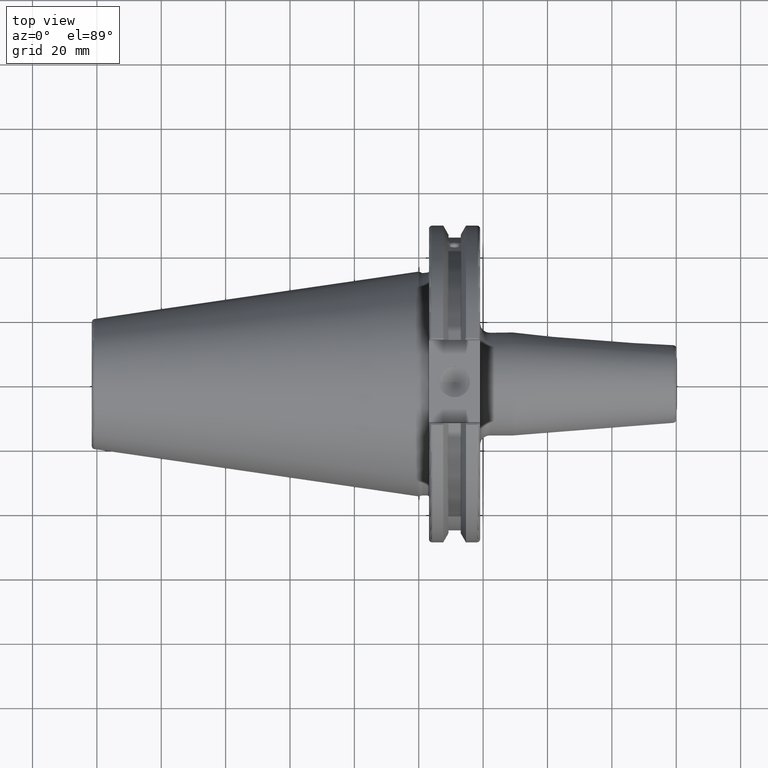
[diagram: clean part render]
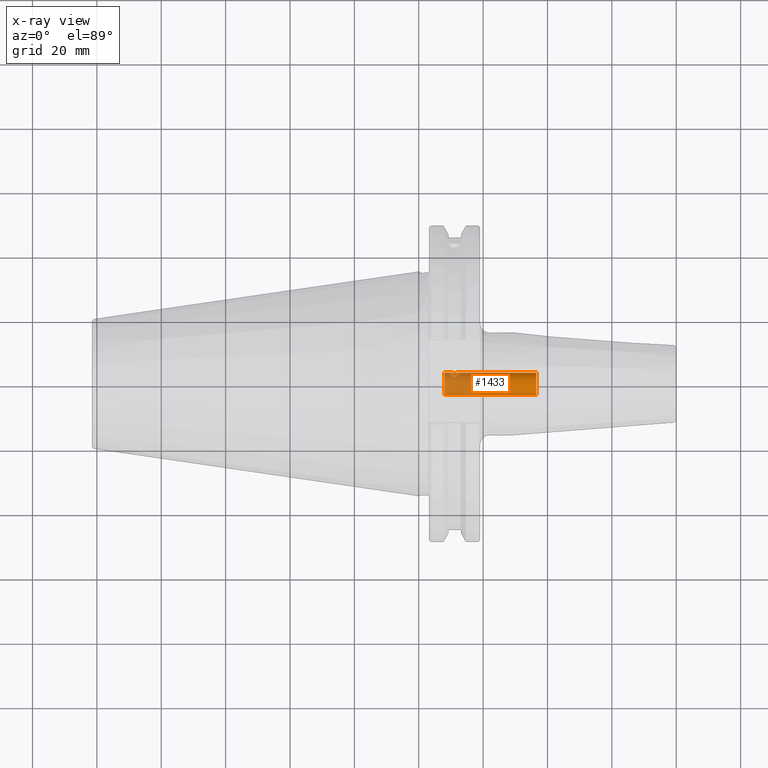
[diagram: x-ray — body ghosted, one internal face saturated and labeled with its STEP entity id]
A machine part, top view, then the same camera in x-ray: the body is ghosted and one INTERNAL B-rep face — a face not visible from any outside direction — is saturated and labeled: STEP entity #1433.
In plain terms, the highlighted cylindrical surface (bore or boss wall) has radius 3.4585 mm, axis along (1, 0, 0).
Its self-contained STEP definition (entity closure, byte-faithful):
#33=B_SPLINE_CURVE_WITH_KNOTS('',3,(#2175,#2176,#2177,#2178,#2179,#2180,
#2181,#2182,#2183,#2184),.UNSPECIFIED.,.F.,.F.,(4,2,2,2,4),(0.,0.0622016464187289,
0.124403292837458,0.186478402589838,0.248553512342218),.UNSPECIFIED.);
#34=B_SPLINE_CURVE_WITH_KNOTS('',3,(#2185,#2186,#2187,#2188,#2189,#2190,
#2191,#2192,#2193,#2194,#2195,#2196,#2197,#2198,#2199,#2200,#2201,#2202,
#2203,#2204,#2205,#2206,#2207,#2208,#2209,#2210),.UNSPECIFIED.,.F.,.F.,
(4,2,2,2,2,2,2,2,2,2,2,2,4),(0.248553512342218,0.310628622094598,0.372703731846978,
0.434905378265707,0.497107024684435,0.559308671103164,0.621510317521892,
0.683585427274271,0.74566053702665,0.807735646779029,0.869810756531408,
0.932012402950136,0.994214049368864),.UNSPECIFIED.);
#35=B_SPLINE_CURVE_WITH_KNOTS('',3,(#2213,#2214,#2215,#2216,#2217,#2218,
#2219,#2220,#2221,#2222),.UNSPECIFIED.,.F.,.F.,(4,2,2,2,4),(0.,0.06220164641873,
0.12440329283746,0.186478402589839,0.248553512342217),.UNSPECIFIED.);
#36=B_SPLINE_CURVE_WITH_KNOTS('',3,(#2223,#2224,#2225,#2226,#2227,#2228,
#2229,#2230,#2231,#2232,#2233,#2234,#2235,#2236,#2237,#2238,#2239,#2240,
#2241,#2242,#2243,#2244,#2245,#2246,#2247,#2248),.UNSPECIFIED.,.F.,.F.,
(4,2,2,2,2,2,2,2,2,2,2,2,4),(0.248553512342217,0.310628622094596,0.372703731846975,
0.434905378265705,0.497107024684435,0.559308671103164,0.621510317521893,
0.683585427274272,0.745660537026651,0.80773564677903,0.86981075653141,0.932012402950139,
0.994214049368868),.UNSPECIFIED.);
#96=LINE('',#2169,#186);
#186=VECTOR('',#1759,3.4585);
#265=CYLINDRICAL_SURFACE('',#1556,3.4585);
#291=FACE_BOUND('',#441,.T.);
#292=FACE_BOUND('',#442,.T.);
#354=FACE_OUTER_BOUND('',#440,.T.);
#440=EDGE_LOOP('',(#1021,#1022,#1023,#1024,#1025));
#441=EDGE_LOOP('',(#1026,#1027));
#442=EDGE_LOOP('',(#1028,#1029));
#550=CIRCLE('',#1557,3.4585);
#551=CIRCLE('',#1558,3.4585);
#552=CIRCLE('',#1559,3.4585);
#631=VERTEX_POINT('',#2166);
#632=VERTEX_POINT('',#2168);
#633=VERTEX_POINT('',#2170);
#634=VERTEX_POINT('',#2173);
#635=VERTEX_POINT('',#2174);
#636=VERTEX_POINT('',#2211);
#637=VERTEX_POINT('',#2212);
#785=EDGE_CURVE('',#631,#631,#550,.T.);
#786=EDGE_CURVE('',#631,#632,#96,.T.);
#787=EDGE_CURVE('',#633,#632,#551,.T.);
#788=EDGE_CURVE('',#632,#633,#552,.T.);
#789=EDGE_CURVE('',#634,#635,#33,.T.);
#790=EDGE_CURVE('',#635,#634,#34,.T.);
#791=EDGE_CURVE('',#636,#637,#35,.T.);
#792=EDGE_CURVE('',#637,#636,#36,.T.);
#1021=ORIENTED_EDGE('',*,*,#785,.F.);
#1022=ORIENTED_EDGE('',*,*,#786,.T.);
#1023=ORIENTED_EDGE('',*,*,#787,.F.);
#1024=ORIENTED_EDGE('',*,*,#788,.F.);
#1025=ORIENTED_EDGE('',*,*,#786,.F.);
#1026=ORIENTED_EDGE('',*,*,#789,.F.);
#1027=ORIENTED_EDGE('',*,*,#790,.F.);
#1028=ORIENTED_EDGE('',*,*,#791,.F.);
#1029=ORIENTED_EDGE('',*,*,#792,.F.);
#1433=ADVANCED_FACE('',(#354,#291,#292),#265,.F.);
#1556=AXIS2_PLACEMENT_3D('',#2165,#1755,#1756);
#1557=AXIS2_PLACEMENT_3D('',#2167,#1757,#1758);
#1558=AXIS2_PLACEMENT_3D('',#2171,#1760,#1761);
#1559=AXIS2_PLACEMENT_3D('',#2172,#1762,#1763);
#1755=DIRECTION('center_axis',(1.,0.,0.));
#1756=DIRECTION('ref_axis',(0.,0.,-1.));
#1757=DIRECTION('center_axis',(-1.,0.,0.));
#1758=DIRECTION('ref_axis',(0.,0.,-1.));
#1759=DIRECTION('',(-1.,0.,0.));
#1760=DIRECTION('center_axis',(1.,0.,0.));
#1761=DIRECTION('ref_axis',(0.,0.,-1.));
#1762=DIRECTION('center_axis',(1.,0.,0.));
#1763=DIRECTION('ref_axis',(0.,0.,-1.));
#2165=CARTESIAN_POINT('Origin',(-147.228560080512,0.,0.));
#2166=CARTESIAN_POINT('',(36.5,4.23544095485112E-16,3.4585));
#2167=CARTESIAN_POINT('Origin',(36.5,0.,0.));
#2168=CARTESIAN_POINT('',(7.92267787942045,-4.23544095485112E-16,3.4585));
#2169=CARTESIAN_POINT('',(-147.228560080512,-4.23544095485112E-16,3.4585));
#2170=CARTESIAN_POINT('',(7.92267787942045,-4.23544095485112E-16,-3.4585));
#2171=CARTESIAN_POINT('Origin',(7.92267787942045,0.,0.));
#2172=CARTESIAN_POINT('Origin',(7.92267787942045,0.,0.));
#2173=CARTESIAN_POINT('',(11.1341,-2.31643185183489,-2.56814441295749));
#2174=CARTESIAN_POINT('',(9.5131,-3.24992692898806,-1.18287666569183));
#2175=CARTESIAN_POINT('Ctrl Pts',(11.1341,-2.31643185183489,-2.56814441295749));
#2176=CARTESIAN_POINT('Ctrl Pts',(10.9267611786043,-2.31643185183489,-2.56814441295749));
#2177=CARTESIAN_POINT('Ctrl Pts',(10.7083501747749,-2.35277560996084,-2.53656745812173));
#2178=CARTESIAN_POINT('Ctrl Pts',(10.3102334163738,-2.48461268195478,-2.40757690802051));
#2179=CARTESIAN_POINT('Ctrl Pts',(10.1301669593844,-2.57858764302937,-2.30972981082117));
#2180=CARTESIAN_POINT('Ctrl Pts',(9.84588231023107,-2.7696581626428,-2.07674438792115));
#2181=CARTESIAN_POINT('Ctrl Pts',(9.72157985129798,-2.8802198494188,-1.92525445745764));
#2182=CARTESIAN_POINT('Ctrl Pts',(9.55510687438423,-3.08531693748387,-1.57578250951528));
#2183=CARTESIAN_POINT('Ctrl Pts',(9.5131,-3.17915713587318,-1.37731507425445));
#2184=CARTESIAN_POINT('Ctrl Pts',(9.5131,-3.24992692898806,-1.18287666569183));
#2185=CARTESIAN_POINT('Ctrl Pts',(9.5131,-3.24992692898806,-1.18287666569183));
#2186=CARTESIAN_POINT('Ctrl Pts',(9.5131,-3.32069672210295,-0.988438257129203));
#2187=CARTESIAN_POINT('Ctrl Pts',(9.55510687438423,-3.37638336789757,-0.776084064392399));
#2188=CARTESIAN_POINT('Ctrl Pts',(9.72157985129798,-3.4439061213558,-0.376539153654165));
#2189=CARTESIAN_POINT('Ctrl Pts',(9.84588231023107,-3.45658680587341,-0.189423451868465));
#2190=CARTESIAN_POINT('Ctrl Pts',(10.1301669593844,-3.4599784391574,0.111871499255702));
#2191=CARTESIAN_POINT('Ctrl Pts',(10.3102334163738,-3.45088434415741,0.247232664940111));
#2192=CARTESIAN_POINT('Ctrl Pts',(10.7083501747749,-3.4328048151311,0.430788395435062));
#2193=CARTESIAN_POINT('Ctrl Pts',(10.9267611786043,-3.42526115649671,0.478339063630426));
#2194=CARTESIAN_POINT('Ctrl Pts',(11.3414388213958,-3.42526115649671,0.478339063630422));
#2195=CARTESIAN_POINT('Ctrl Pts',(11.5598498252251,-3.4328048151311,0.430788395435056));
#2196=CARTESIAN_POINT('Ctrl Pts',(11.9579665836262,-3.45088434415742,0.247232664940102));
#2197=CARTESIAN_POINT('Ctrl Pts',(12.1380330406156,-3.4599784391574,0.111871499255691));
#2198=CARTESIAN_POINT('Ctrl Pts',(12.4223176897689,-3.45658680587341,-0.189423451868475));
#2199=CARTESIAN_POINT('Ctrl Pts',(12.546620148702,-3.4439061213558,-0.376539153654174));
#2200=CARTESIAN_POINT('Ctrl Pts',(12.7130931256158,-3.37638336789756,-0.776084064392403));
#2201=CARTESIAN_POINT('Ctrl Pts',(12.7551,-3.32069672210295,-0.988438257129205));
#2202=CARTESIAN_POINT('Ctrl Pts',(12.7551,-3.17915713587318,-1.37731507425444));
#2203=CARTESIAN_POINT('Ctrl Pts',(12.7130931256158,-3.08531693748388,-1.57578250951527));
#2204=CARTESIAN_POINT('Ctrl Pts',(12.546620148702,-2.8802198494188,-1.92525445745763));
#2205=CARTESIAN_POINT('Ctrl Pts',(12.4223176897689,-2.76965816264281,-2.07674438792114));
#2206=CARTESIAN_POINT('Ctrl Pts',(12.1380330406156,-2.57858764302938,-2.30972981082116));
#2207=CARTESIAN_POINT('Ctrl Pts',(11.9579665836262,-2.48461268195479,-2.40757690802051));
#2208=CARTESIAN_POINT('Ctrl Pts',(11.5598498252251,-2.35277560996085,-2.53656745812173));
#2209=CARTESIAN_POINT('Ctrl Pts',(11.3414388213958,-2.31643185183489,-2.56814441295749));
#2210=CARTESIAN_POINT('Ctrl Pts',(11.1341,-2.31643185183489,-2.56814441295749));
#2211=CARTESIAN_POINT('',(11.1341,2.31643185183489,2.56814441295749));
#2212=CARTESIAN_POINT('',(9.5131,3.24992692898806,1.18287666569183));
#2213=CARTESIAN_POINT('Ctrl Pts',(11.1341,2.31643185183489,2.56814441295749));
#2214=CARTESIAN_POINT('Ctrl Pts',(10.9267611786042,2.31643185183489,2.56814441295749));
#2215=CARTESIAN_POINT('Ctrl Pts',(10.7083501747749,2.35277560996085,2.53656745812173));
#2216=CARTESIAN_POINT('Ctrl Pts',(10.3102334163738,2.48461268195479,2.40757690802051));
#2217=CARTESIAN_POINT('Ctrl Pts',(10.1301669593844,2.57858764302938,2.30972981082116));
#2218=CARTESIAN_POINT('Ctrl Pts',(9.84588231023104,2.76965816264281,2.07674438792114));
#2219=CARTESIAN_POINT('Ctrl Pts',(9.72157985129798,2.88021984941881,1.92525445745763));
#2220=CARTESIAN_POINT('Ctrl Pts',(9.55510687438423,3.08531693748388,1.57578250951527));
#2221=CARTESIAN_POINT('Ctrl Pts',(9.5131,3.17915713587318,1.37731507425445));
#2222=CARTESIAN_POINT('Ctrl Pts',(9.5131,3.24992692898806,1.18287666569183));
#2223=CARTESIAN_POINT('Ctrl Pts',(9.5131,3.24992692898806,1.18287666569183));
#2224=CARTESIAN_POINT('Ctrl Pts',(9.5131,3.32069672210295,0.988438257129207));
#2225=CARTESIAN_POINT('Ctrl Pts',(9.55510687438423,3.37638336789756,0.776084064392407));
#2226=CARTESIAN_POINT('Ctrl Pts',(9.72157985129798,3.4439061213558,0.376539153654179));
#2227=CARTESIAN_POINT('Ctrl Pts',(9.84588231023104,3.45658680587341,0.189423451868474));
#2228=CARTESIAN_POINT('Ctrl Pts',(10.1301669593844,3.4599784391574,-0.111871499255698));
#2229=CARTESIAN_POINT('Ctrl Pts',(10.3102334163738,3.45088434415742,-0.247232664940098));
#2230=CARTESIAN_POINT('Ctrl Pts',(10.7083501747749,3.4328048151311,-0.430788395435058));
#2231=CARTESIAN_POINT('Ctrl Pts',(10.9267611786042,3.42526115649671,-0.478339063630423));
#2232=CARTESIAN_POINT('Ctrl Pts',(11.3414388213958,3.42526115649671,-0.478339063630424));
#2233=CARTESIAN_POINT('Ctrl Pts',(11.5598498252251,3.4328048151311,-0.430788395435058));
#2234=CARTESIAN_POINT('Ctrl Pts',(11.9579665836262,3.45088434415742,-0.247232664940103));
#2235=CARTESIAN_POINT('Ctrl Pts',(12.1380330406156,3.4599784391574,-0.111871499255697));
#2236=CARTESIAN_POINT('Ctrl Pts',(12.4223176897689,3.45658680587341,0.18942345186847));
#2237=CARTESIAN_POINT('Ctrl Pts',(12.546620148702,3.4439061213558,0.376539153654172));
#2238=CARTESIAN_POINT('Ctrl Pts',(12.7130931256158,3.37638336789756,0.776084064392403));
#2239=CARTESIAN_POINT('Ctrl Pts',(12.7551,3.32069672210295,0.988438257129206));
#2240=CARTESIAN_POINT('Ctrl Pts',(12.7551,3.17915713587318,1.37731507425445));
#2241=CARTESIAN_POINT('Ctrl Pts',(12.7130931256158,3.08531693748388,1.57578250951527));
#2242=CARTESIAN_POINT('Ctrl Pts',(12.546620148702,2.8802198494188,1.92525445745764));
#2243=CARTESIAN_POINT('Ctrl Pts',(12.4223176897689,2.7696581626428,2.07674438792114));
#2244=CARTESIAN_POINT('Ctrl Pts',(12.1380330406156,2.57858764302938,2.30972981082116));
#2245=CARTESIAN_POINT('Ctrl Pts',(11.9579665836262,2.48461268195478,2.40757690802051));
#2246=CARTESIAN_POINT('Ctrl Pts',(11.5598498252251,2.35277560996085,2.53656745812173));
#2247=CARTESIAN_POINT('Ctrl Pts',(11.3414388213958,2.31643185183489,2.56814441295749));
#2248=CARTESIAN_POINT('Ctrl Pts',(11.1341,2.31643185183489,2.56814441295749));